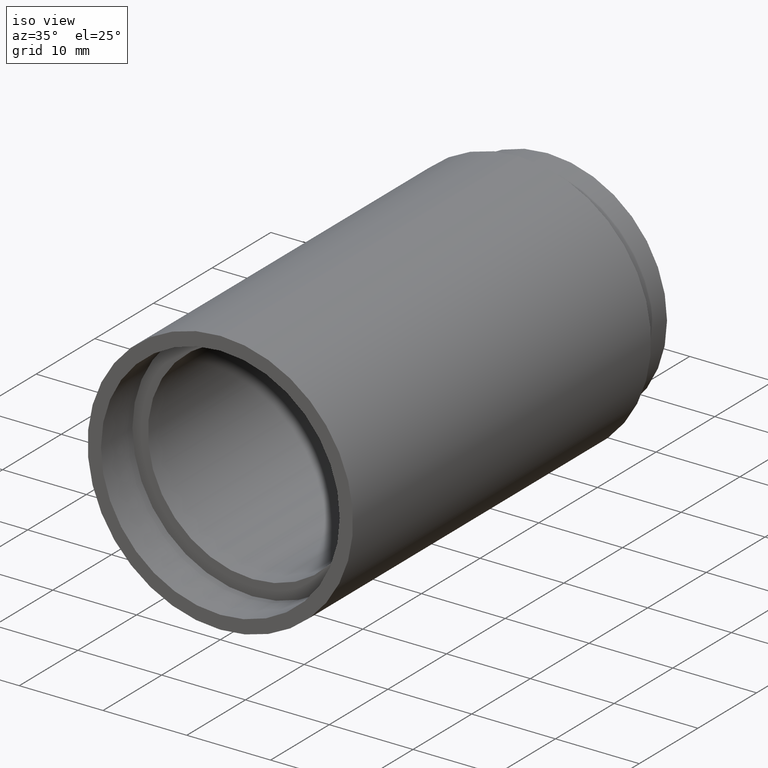
[diagram: clean part render]
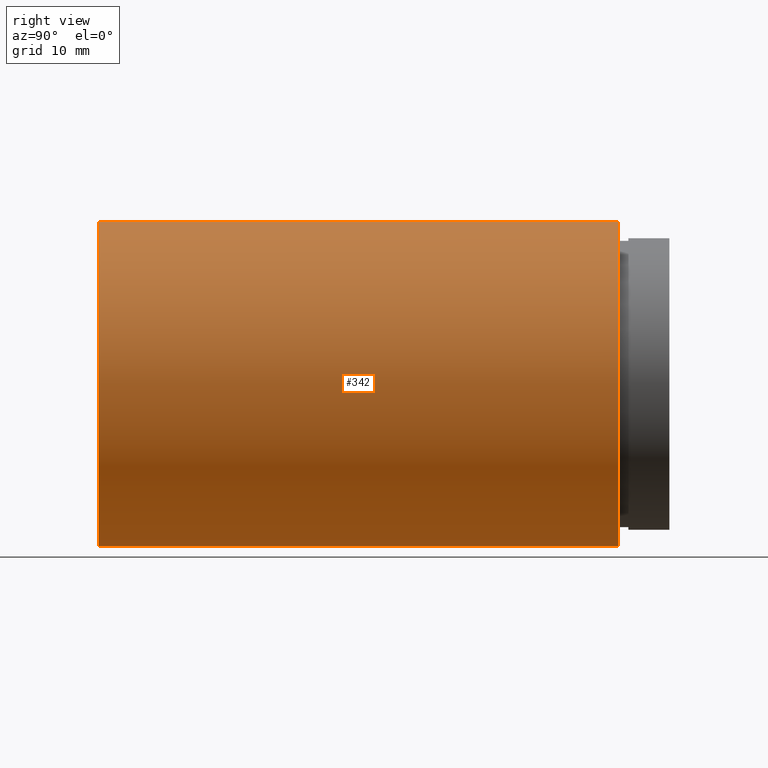
[diagram: tour spotlight — one face highlighted and labeled with its STEP entity id]
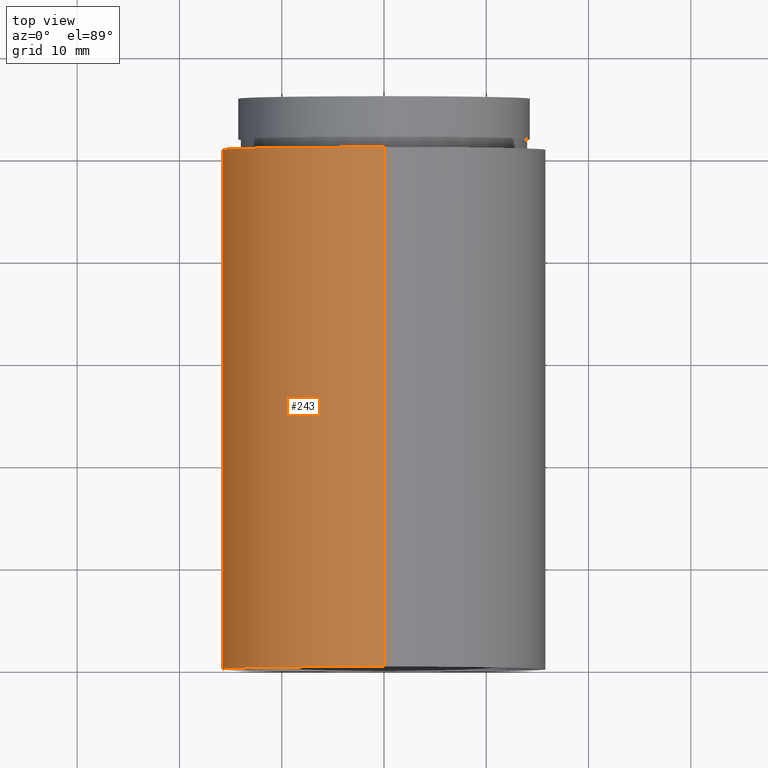
[diagram: tour spotlight — one face highlighted and labeled with its STEP entity id]
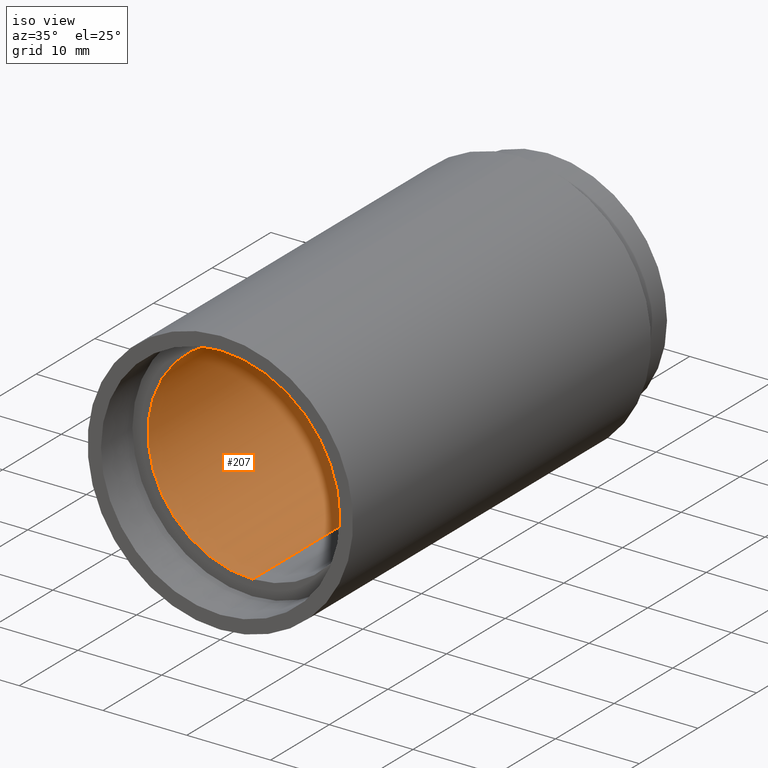
[diagram: tour spotlight — one face highlighted and labeled with its STEP entity id]
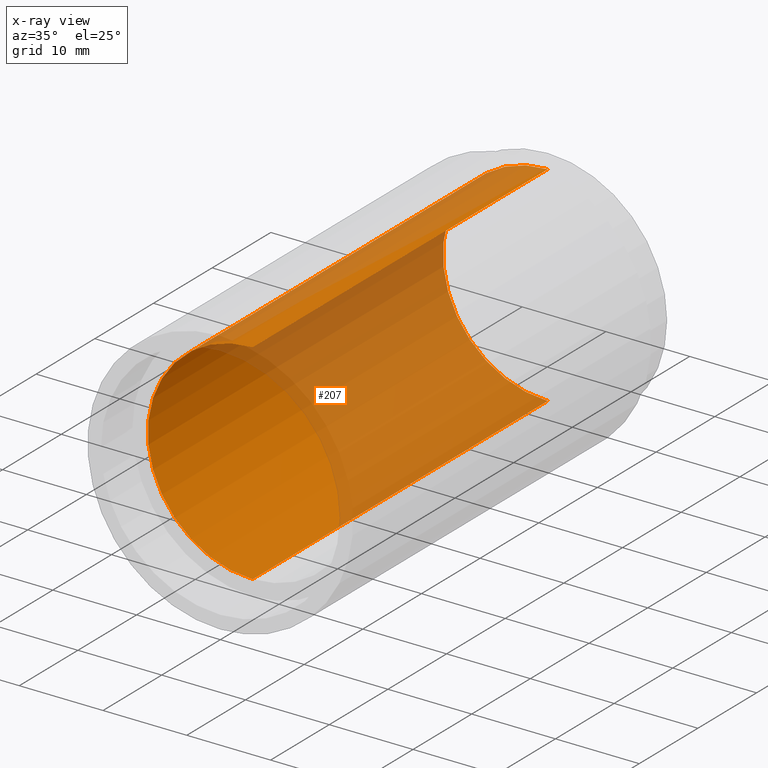
[diagram: x-ray of the same camera — body ghosted, this tour face saturated]
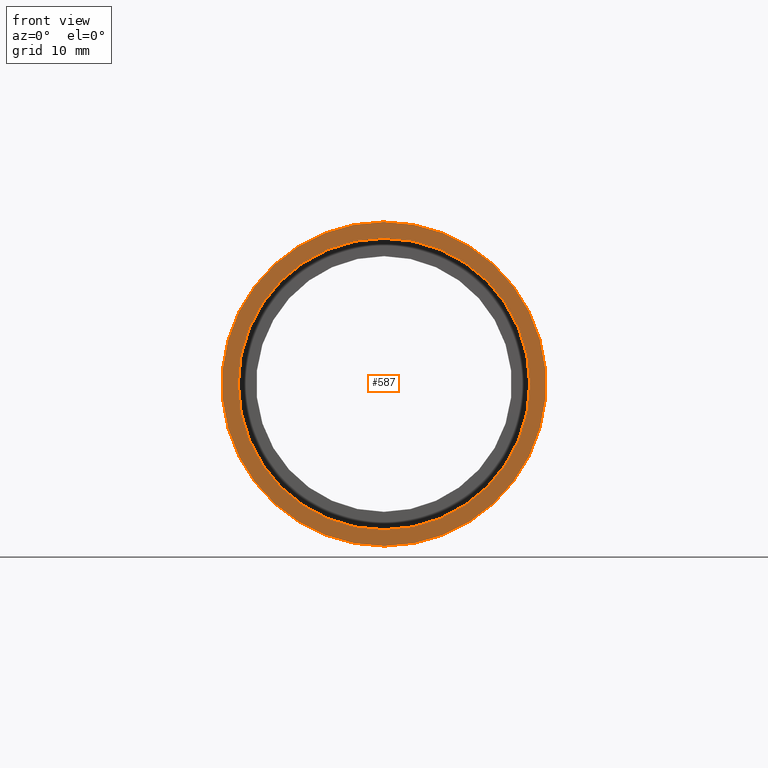
[diagram: tour spotlight — one face highlighted and labeled with its STEP entity id]
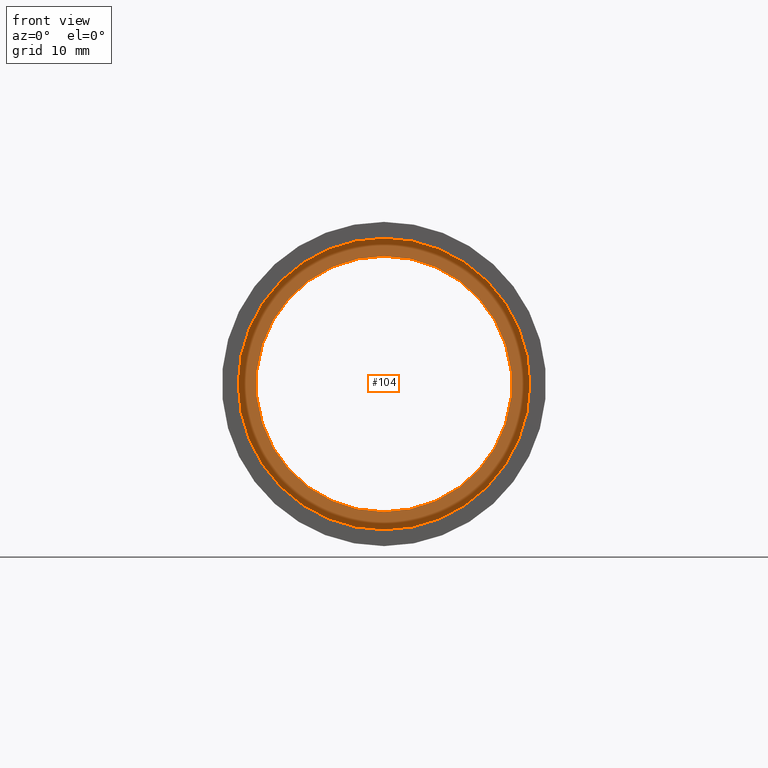
[diagram: tour spotlight — one face highlighted and labeled with its STEP entity id]
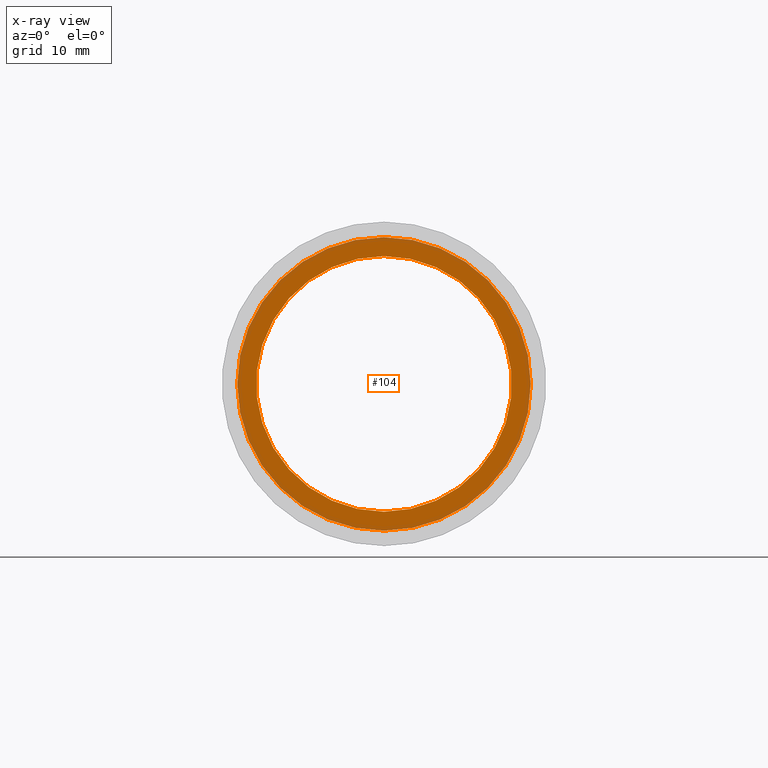
[diagram: x-ray of the same camera — body ghosted, this tour face saturated]
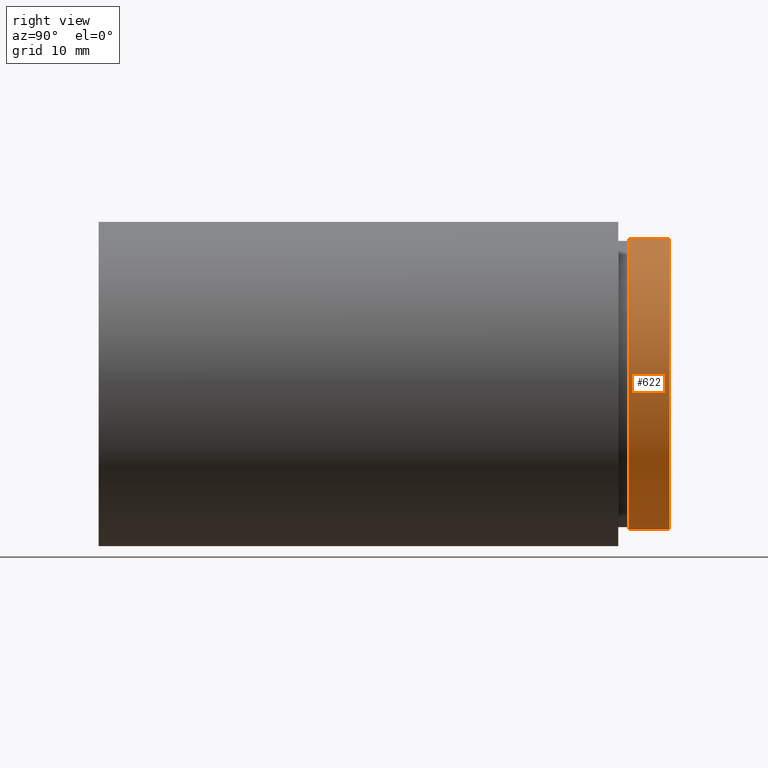
[diagram: tour spotlight — one face highlighted and labeled with its STEP entity id]
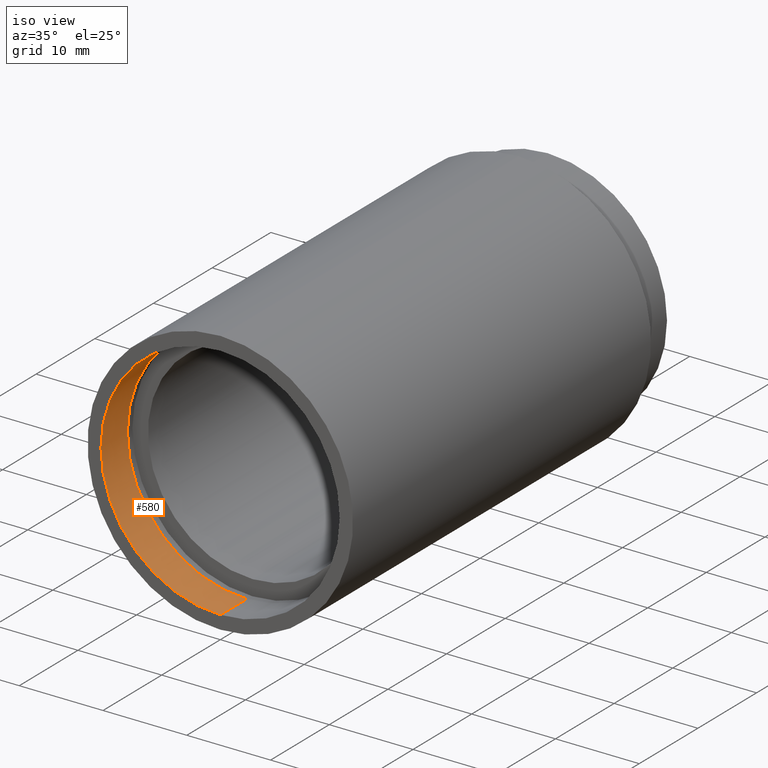
[diagram: tour spotlight — one face highlighted and labeled with its STEP entity id]
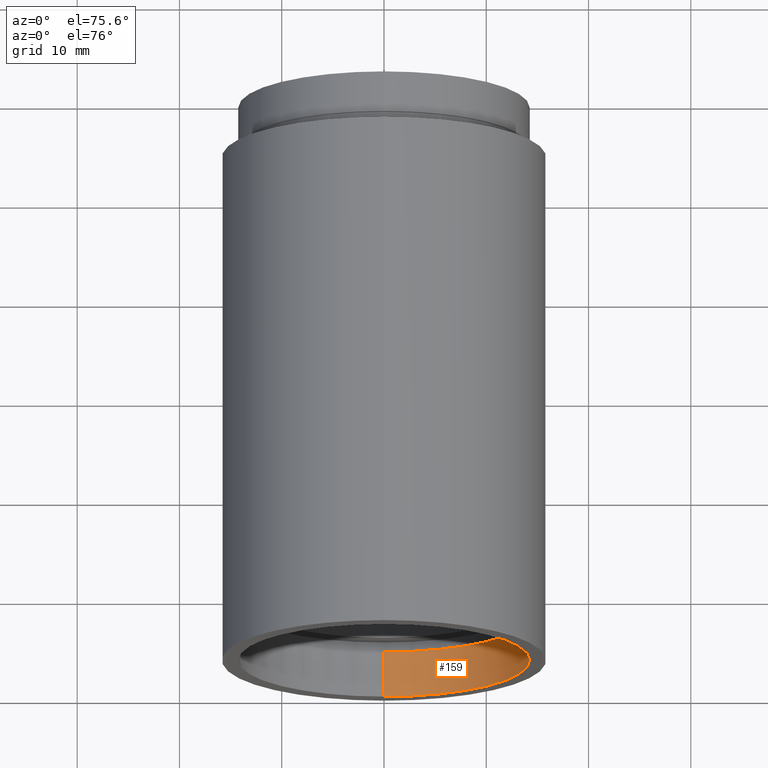
[diagram: tour spotlight — one face highlighted and labeled with its STEP entity id]
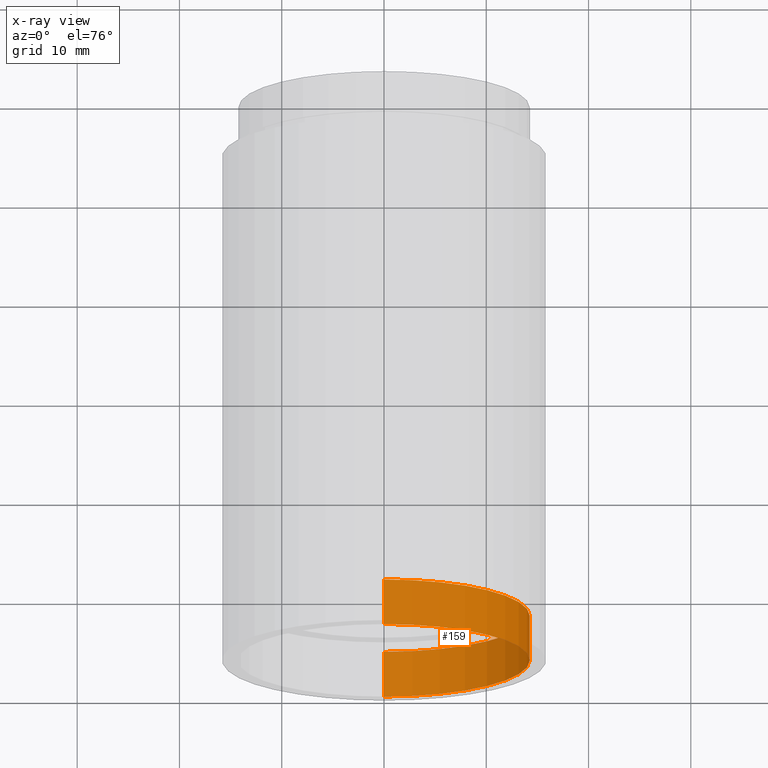
[diagram: x-ray of the same camera — body ghosted, this tour face saturated]
A machine part: a face-by-face anatomy tour. The part has 18 B-rep faces; the first image is the clean iso view, then the 8 largest visible faces are spotlighted one at a time (largest first), each with its STEP entity span.

Face 1 — right view, entity #342. In plain terms, the highlighted cylindrical surface (partial cylindrical patch) has radius 15.85 mm, axis along (-0, 1, -0).
Definition (entity closure, byte-faithful):
#34 = LINE ( 'NONE', #382, #114 ) ;
#35 = DIRECTION ( 'NONE',  ( -0.0000000000000000000, 1.000000000000000000, -0.0000000000000000000 ) ) ;
#36 = VERTEX_POINT ( 'NONE', #123 ) ;
#46 = VERTEX_POINT ( 'NONE', #69 ) ;
#54 = VERTEX_POINT ( 'NONE', #477 ) ;
#55 = DIRECTION ( 'NONE',  ( 0.0000000000000000000, 0.0000000000000000000, 1.000000000000000000 ) ) ;
#69 = CARTESIAN_POINT ( 'NONE',  ( 0.0000000000000000000, 50.79999999999998300, 15.85000000000002100 ) ) ;
#70 = CYLINDRICAL_SURFACE ( 'NONE', #190, 15.85000000000002100 ) ;
#105 = CARTESIAN_POINT ( 'NONE',  ( 1.941065176648557100E-015, 50.79999999999998300, -15.85000000000002100 ) ) ;
#112 = AXIS2_PLACEMENT_3D ( 'NONE', #450, #445, #55 ) ;
#113 = EDGE_CURVE ( 'NONE', #36, #559, #34, .T. ) ;
#114 = VECTOR ( 'NONE', #35, 1000.000000000000000 ) ;
#118 = ORIENTED_EDGE ( 'NONE', *, *, #599, .T. ) ;
#123 = CARTESIAN_POINT ( 'NONE',  ( 1.941065176648557100E-015, -2.775557561562891400E-014, -15.85000000000002100 ) ) ;
#133 = CARTESIAN_POINT ( 'NONE',  ( 0.0000000000000000000, 161.3761669434274500, 0.0000000000000000000 ) ) ;
#190 = AXIS2_PLACEMENT_3D ( 'NONE', #133, #571, #566 ) ;
#208 = DIRECTION ( 'NONE',  ( -0.0000000000000000000, 1.000000000000000000, -0.0000000000000000000 ) ) ;
#210 = DIRECTION ( 'NONE',  ( 0.0000000000000000000, 0.0000000000000000000, 1.000000000000000000 ) ) ;
#211 = FACE_OUTER_BOUND ( 'NONE', #239, .T. ) ;
#239 = EDGE_LOOP ( 'NONE', ( #118, #400, #279, #327 ) ) ;
#258 = AXIS2_PLACEMENT_3D ( 'NONE', #359, #208, #210 ) ;
#268 = VECTOR ( 'NONE', #351, 1000.000000000000000 ) ;
#279 = ORIENTED_EDGE ( 'NONE', *, *, #552, .F. ) ;
#294 = CARTESIAN_POINT ( 'NONE',  ( 0.0000000000000000000, 161.3761669434274500, 15.85000000000002100 ) ) ;
#316 = CIRCLE ( 'NONE', #258, 15.85000000000002100 ) ;
#322 = CIRCLE ( 'NONE', #112, 15.85000000000002100 ) ;
#327 = ORIENTED_EDGE ( 'NONE', *, *, #582, .F. ) ;
#342 = ADVANCED_FACE ( 'NONE', ( #211 ), #70, .T. ) ;
#351 = DIRECTION ( 'NONE',  ( -0.0000000000000000000, 1.000000000000000000, -0.0000000000000000000 ) ) ;
#359 = CARTESIAN_POINT ( 'NONE',  ( 0.0000000000000000000, 50.79999999999998300, 0.0000000000000000000 ) ) ;
#382 = CARTESIAN_POINT ( 'NONE',  ( 1.941065176648557100E-015, 161.3761669434274500, -15.85000000000002100 ) ) ;
#400 = ORIENTED_EDGE ( 'NONE', *, *, #113, .T. ) ;
#445 = DIRECTION ( 'NONE',  ( -0.0000000000000000000, 1.000000000000000000, -0.0000000000000000000 ) ) ;
#450 = CARTESIAN_POINT ( 'NONE',  ( 0.0000000000000000000, -2.775557561562891400E-014, 0.0000000000000000000 ) ) ;
#468 = LINE ( 'NONE', #294, #268 ) ;
#477 = CARTESIAN_POINT ( 'NONE',  ( 0.0000000000000000000, -2.775557561562891400E-014, 15.85000000000002100 ) ) ;
#552 = EDGE_CURVE ( 'NONE', #46, #559, #316, .T. ) ;
#559 = VERTEX_POINT ( 'NONE', #105 ) ;
#566 = DIRECTION ( 'NONE',  ( 0.0000000000000000000, 0.0000000000000000000, 1.000000000000000000 ) ) ;
#571 = DIRECTION ( 'NONE',  ( -0.0000000000000000000, 1.000000000000000000, -0.0000000000000000000 ) ) ;
#582 = EDGE_CURVE ( 'NONE', #54, #46, #468, .T. ) ;
#599 = EDGE_CURVE ( 'NONE', #54, #36, #322, .T. ) ;

Face 2 — top view, entity #243. In plain terms, the highlighted cylindrical surface (partial cylindrical patch) has radius 15.85 mm, axis along (-0, 1, -0).
Definition (entity closure, byte-faithful):
#14 = ORIENTED_EDGE ( 'NONE', *, *, #52, .T. ) ;
#33 = CYLINDRICAL_SURFACE ( 'NONE', #472, 15.85000000000002100 ) ;
#34 = LINE ( 'NONE', #382, #114 ) ;
#35 = DIRECTION ( 'NONE',  ( -0.0000000000000000000, 1.000000000000000000, -0.0000000000000000000 ) ) ;
#36 = VERTEX_POINT ( 'NONE', #123 ) ;
#40 = DIRECTION ( 'NONE',  ( 0.0000000000000000000, 0.0000000000000000000, 1.000000000000000000 ) ) ;
#46 = VERTEX_POINT ( 'NONE', #69 ) ;
#48 = EDGE_CURVE ( 'NONE', #559, #46, #555, .T. ) ;
#51 = DIRECTION ( 'NONE',  ( 0.0000000000000000000, 0.0000000000000000000, 1.000000000000000000 ) ) ;
#52 = EDGE_CURVE ( 'NONE', #36, #54, #106, .T. ) ;
#54 = VERTEX_POINT ( 'NONE', #477 ) ;
#69 = CARTESIAN_POINT ( 'NONE',  ( 0.0000000000000000000, 50.79999999999998300, 15.85000000000002100 ) ) ;
#80 = EDGE_LOOP ( 'NONE', ( #227, #14, #362, #338 ) ) ;
#82 = DIRECTION ( 'NONE',  ( -0.0000000000000000000, 1.000000000000000000, -0.0000000000000000000 ) ) ;
#88 = DIRECTION ( 'NONE',  ( -0.0000000000000000000, 1.000000000000000000, -0.0000000000000000000 ) ) ;
#96 = CARTESIAN_POINT ( 'NONE',  ( 0.0000000000000000000, 161.3761669434274500, 0.0000000000000000000 ) ) ;
#105 = CARTESIAN_POINT ( 'NONE',  ( 1.941065176648557100E-015, 50.79999999999998300, -15.85000000000002100 ) ) ;
#106 = CIRCLE ( 'NONE', #524, 15.85000000000002100 ) ;
#113 = EDGE_CURVE ( 'NONE', #36, #559, #34, .T. ) ;
#114 = VECTOR ( 'NONE', #35, 1000.000000000000000 ) ;
#123 = CARTESIAN_POINT ( 'NONE',  ( 1.941065176648557100E-015, -2.775557561562891400E-014, -15.85000000000002100 ) ) ;
#144 = CARTESIAN_POINT ( 'NONE',  ( 0.0000000000000000000, -2.775557561562891400E-014, 0.0000000000000000000 ) ) ;
#188 = CARTESIAN_POINT ( 'NONE',  ( 0.0000000000000000000, 50.79999999999998300, 0.0000000000000000000 ) ) ;
#227 = ORIENTED_EDGE ( 'NONE', *, *, #113, .F. ) ;
#243 = ADVANCED_FACE ( 'NONE', ( #597 ), #33, .T. ) ;
#268 = VECTOR ( 'NONE', #351, 1000.000000000000000 ) ;
#294 = CARTESIAN_POINT ( 'NONE',  ( 0.0000000000000000000, 161.3761669434274500, 15.85000000000002100 ) ) ;
#336 = DIRECTION ( 'NONE',  ( 0.0000000000000000000, 0.0000000000000000000, 1.000000000000000000 ) ) ;
#338 = ORIENTED_EDGE ( 'NONE', *, *, #48, .F. ) ;
#351 = DIRECTION ( 'NONE',  ( -0.0000000000000000000, 1.000000000000000000, -0.0000000000000000000 ) ) ;
#362 = ORIENTED_EDGE ( 'NONE', *, *, #582, .T. ) ;
#382 = CARTESIAN_POINT ( 'NONE',  ( 1.941065176648557100E-015, 161.3761669434274500, -15.85000000000002100 ) ) ;
#468 = LINE ( 'NONE', #294, #268 ) ;
#472 = AXIS2_PLACEMENT_3D ( 'NONE', #96, #623, #51 ) ;
#477 = CARTESIAN_POINT ( 'NONE',  ( 0.0000000000000000000, -2.775557561562891400E-014, 15.85000000000002100 ) ) ;
#510 = AXIS2_PLACEMENT_3D ( 'NONE', #188, #88, #336 ) ;
#524 = AXIS2_PLACEMENT_3D ( 'NONE', #144, #82, #40 ) ;
#555 = CIRCLE ( 'NONE', #510, 15.85000000000002100 ) ;
#559 = VERTEX_POINT ( 'NONE', #105 ) ;
#582 = EDGE_CURVE ( 'NONE', #54, #46, #468, .T. ) ;
#597 = FACE_OUTER_BOUND ( 'NONE', #80, .T. ) ;
#623 = DIRECTION ( 'NONE',  ( -0.0000000000000000000, 1.000000000000000000, -0.0000000000000000000 ) ) ;

Face 3 — iso view, entity #207. An x-ray twin of the same camera follows (body ghosted, this face saturated) — the face is partly hidden behind the body. In plain terms, the highlighted cylindrical surface (partial cylindrical patch) has radius 12.5 mm, axis along (-0, 1, -0).
Definition (entity closure, byte-faithful):
#10 = AXIS2_PLACEMENT_3D ( 'NONE', #124, #470, #563 ) ;
#43 = DIRECTION ( 'NONE',  ( -0.0000000000000000000, 1.000000000000000000, -0.0000000000000000000 ) ) ;
#50 = CARTESIAN_POINT ( 'NONE',  ( 0.0000000000000000000, 5.499999999999976900, 0.0000000000000000000 ) ) ;
#61 = EDGE_CURVE ( 'NONE', #174, #541, #185, .T. ) ;
#81 = VERTEX_POINT ( 'NONE', #193 ) ;
#92 = ORIENTED_EDGE ( 'NONE', *, *, #130, .F. ) ;
#124 = CARTESIAN_POINT ( 'NONE',  ( 0.0000000000000000000, 55.79999999999999000, 0.0000000000000000000 ) ) ;
#125 = VECTOR ( 'NONE', #326, 1000.000000000000000 ) ;
#130 = EDGE_CURVE ( 'NONE', #81, #503, #606, .T. ) ;
#150 = DIRECTION ( 'NONE',  ( -0.0000000000000000000, 1.000000000000000000, -0.0000000000000000000 ) ) ;
#163 = CIRCLE ( 'NONE', #10, 12.50000000000002000 ) ;
#174 = VERTEX_POINT ( 'NONE', #191 ) ;
#183 = EDGE_CURVE ( 'NONE', #174, #81, #481, .T. ) ;
#185 = LINE ( 'NONE', #430, #125 ) ;
#191 = CARTESIAN_POINT ( 'NONE',  ( 1.530808498934193900E-015, 5.499999999999976900, -12.50000000000002000 ) ) ;
#193 = CARTESIAN_POINT ( 'NONE',  ( 0.0000000000000000000, 5.499999999999976900, 12.50000000000002000 ) ) ;
#207 = ADVANCED_FACE ( 'NONE', ( #422 ), #324, .F. ) ;
#233 = CARTESIAN_POINT ( 'NONE',  ( 0.0000000000000000000, 161.3761669434274500, 12.50000000000002000 ) ) ;
#247 = DIRECTION ( 'NONE',  ( 0.0000000000000000000, 0.0000000000000000000, 1.000000000000000000 ) ) ;
#259 = CARTESIAN_POINT ( 'NONE',  ( 0.0000000000000000000, 55.79999999999999000, 12.50000000000002000 ) ) ;
#261 = VECTOR ( 'NONE', #43, 1000.000000000000000 ) ;
#275 = EDGE_CURVE ( 'NONE', #541, #503, #163, .T. ) ;
#297 = AXIS2_PLACEMENT_3D ( 'NONE', #339, #540, #247 ) ;
#307 = EDGE_LOOP ( 'NONE', ( #449, #451, #598, #92 ) ) ;
#324 = CYLINDRICAL_SURFACE ( 'NONE', #297, 12.50000000000002000 ) ;
#326 = DIRECTION ( 'NONE',  ( -0.0000000000000000000, 1.000000000000000000, -0.0000000000000000000 ) ) ;
#339 = CARTESIAN_POINT ( 'NONE',  ( 0.0000000000000000000, 161.3761669434274500, 0.0000000000000000000 ) ) ;
#422 = FACE_OUTER_BOUND ( 'NONE', #307, .T. ) ;
#430 = CARTESIAN_POINT ( 'NONE',  ( 1.530808498934193900E-015, 161.3761669434274500, -12.50000000000002000 ) ) ;
#448 = AXIS2_PLACEMENT_3D ( 'NONE', #50, #150, #536 ) ;
#449 = ORIENTED_EDGE ( 'NONE', *, *, #183, .F. ) ;
#451 = ORIENTED_EDGE ( 'NONE', *, *, #61, .T. ) ;
#470 = DIRECTION ( 'NONE',  ( -0.0000000000000000000, 1.000000000000000000, -0.0000000000000000000 ) ) ;
#481 = CIRCLE ( 'NONE', #448, 12.50000000000002000 ) ;
#503 = VERTEX_POINT ( 'NONE', #259 ) ;
#536 = DIRECTION ( 'NONE',  ( 0.0000000000000000000, 0.0000000000000000000, 1.000000000000000000 ) ) ;
#540 = DIRECTION ( 'NONE',  ( -0.0000000000000000000, 1.000000000000000000, -0.0000000000000000000 ) ) ;
#541 = VERTEX_POINT ( 'NONE', #542 ) ;
#542 = CARTESIAN_POINT ( 'NONE',  ( 1.530808498934193900E-015, 55.79999999999999000, -12.50000000000002000 ) ) ;
#563 = DIRECTION ( 'NONE',  ( 0.0000000000000000000, 0.0000000000000000000, 1.000000000000000000 ) ) ;
#598 = ORIENTED_EDGE ( 'NONE', *, *, #275, .T. ) ;
#606 = LINE ( 'NONE', #233, #261 ) ;

Face 4 — front view, entity #587. In plain terms, the highlighted planar face has unit normal (-0, 1, 0).
Definition (entity closure, byte-faithful):
#36 = VERTEX_POINT ( 'NONE', #123 ) ;
#40 = DIRECTION ( 'NONE',  ( 0.0000000000000000000, 0.0000000000000000000, 1.000000000000000000 ) ) ;
#52 = EDGE_CURVE ( 'NONE', #36, #54, #106, .T. ) ;
#54 = VERTEX_POINT ( 'NONE', #477 ) ;
#55 = DIRECTION ( 'NONE',  ( 0.0000000000000000000, 0.0000000000000000000, 1.000000000000000000 ) ) ;
#82 = DIRECTION ( 'NONE',  ( -0.0000000000000000000, 1.000000000000000000, -0.0000000000000000000 ) ) ;
#83 = DIRECTION ( 'NONE',  ( -0.0000000000000000000, 1.000000000000000000, -0.0000000000000000000 ) ) ;
#100 = ORIENTED_EDGE ( 'NONE', *, *, #604, .T. ) ;
#106 = CIRCLE ( 'NONE', #524, 15.85000000000002100 ) ;
#108 = DIRECTION ( 'NONE',  ( 0.0000000000000000000, 0.0000000000000000000, 1.000000000000000000 ) ) ;
#112 = AXIS2_PLACEMENT_3D ( 'NONE', #450, #445, #55 ) ;
#123 = CARTESIAN_POINT ( 'NONE',  ( 1.941065176648557100E-015, -2.775557561562891400E-014, -15.85000000000002100 ) ) ;
#126 = ORIENTED_EDGE ( 'NONE', *, *, #360, .T. ) ;
#144 = CARTESIAN_POINT ( 'NONE',  ( 0.0000000000000000000, -2.775557561562891400E-014, 0.0000000000000000000 ) ) ;
#156 = CARTESIAN_POINT ( 'NONE',  ( 0.0000000000000000000, 2.775557561562891400E-014, 14.25000000000000000 ) ) ;
#171 = CIRCLE ( 'NONE', #229, 14.25000000000000000 ) ;
#213 = FACE_BOUND ( 'NONE', #512, .T. ) ;
#220 = CIRCLE ( 'NONE', #539, 14.25000000000000000 ) ;
#229 = AXIS2_PLACEMENT_3D ( 'NONE', #590, #354, #395 ) ;
#322 = CIRCLE ( 'NONE', #112, 15.85000000000002100 ) ;
#325 = ORIENTED_EDGE ( 'NONE', *, *, #52, .F. ) ;
#353 = CARTESIAN_POINT ( 'NONE',  ( 14.25000000000000000, 8.726008142763375300E-015, 0.0000000000000000000 ) ) ;
#354 = DIRECTION ( 'NONE',  ( -0.0000000000000000000, 1.000000000000000000, -0.0000000000000000000 ) ) ;
#360 = EDGE_CURVE ( 'NONE', #551, #513, #220, .T. ) ;
#395 = DIRECTION ( 'NONE',  ( 0.0000000000000000000, 0.0000000000000000000, 1.000000000000000000 ) ) ;
#402 = CARTESIAN_POINT ( 'NONE',  ( 1.745121688784978200E-015, 2.775557561562891400E-014, -14.25000000000000000 ) ) ;
#445 = DIRECTION ( 'NONE',  ( -0.0000000000000000000, 1.000000000000000000, -0.0000000000000000000 ) ) ;
#450 = CARTESIAN_POINT ( 'NONE',  ( 0.0000000000000000000, -2.775557561562891400E-014, 0.0000000000000000000 ) ) ;
#455 = FACE_OUTER_BOUND ( 'NONE', #508, .T. ) ;
#476 = CARTESIAN_POINT ( 'NONE',  ( 0.0000000000000000000, 2.775557561562891400E-014, 0.0000000000000000000 ) ) ;
#477 = CARTESIAN_POINT ( 'NONE',  ( 0.0000000000000000000, -2.775557561562891400E-014, 15.85000000000002100 ) ) ;
#483 = ORIENTED_EDGE ( 'NONE', *, *, #599, .F. ) ;
#506 = DIRECTION ( 'NONE',  ( -0.0000000000000000000, 1.000000000000000000, 0.0000000000000000000 ) ) ;
#508 = EDGE_LOOP ( 'NONE', ( #483, #325 ) ) ;
#512 = EDGE_LOOP ( 'NONE', ( #100, #126 ) ) ;
#513 = VERTEX_POINT ( 'NONE', #156 ) ;
#524 = AXIS2_PLACEMENT_3D ( 'NONE', #144, #82, #40 ) ;
#539 = AXIS2_PLACEMENT_3D ( 'NONE', #476, #83, #569 ) ;
#546 = PLANE ( 'NONE',  #591 ) ;
#551 = VERTEX_POINT ( 'NONE', #402 ) ;
#569 = DIRECTION ( 'NONE',  ( 0.0000000000000000000, 0.0000000000000000000, 1.000000000000000000 ) ) ;
#587 = ADVANCED_FACE ( 'NONE', ( #455, #213 ), #546, .F. ) ;
#590 = CARTESIAN_POINT ( 'NONE',  ( 0.0000000000000000000, 2.775557561562891400E-014, 0.0000000000000000000 ) ) ;
#591 = AXIS2_PLACEMENT_3D ( 'NONE', #353, #506, #108 ) ;
#599 = EDGE_CURVE ( 'NONE', #54, #36, #322, .T. ) ;
#604 = EDGE_CURVE ( 'NONE', #513, #551, #171, .T. ) ;

Face 5 — front view, entity #104. An x-ray twin of the same camera follows (body ghosted, this face saturated) — the face is partly hidden behind the body. In plain terms, the highlighted planar face has unit normal (-0, 1, 0).
Definition (entity closure, byte-faithful):
#23 = FACE_OUTER_BOUND ( 'NONE', #418, .T. ) ;
#24 = DIRECTION ( 'NONE',  ( -0.0000000000000000000, 1.000000000000000000, -0.0000000000000000000 ) ) ;
#45 = DIRECTION ( 'NONE',  ( -0.0000000000000000000, 1.000000000000000000, -0.0000000000000000000 ) ) ;
#50 = CARTESIAN_POINT ( 'NONE',  ( 0.0000000000000000000, 5.499999999999976900, 0.0000000000000000000 ) ) ;
#71 = ORIENTED_EDGE ( 'NONE', *, *, #236, .F. ) ;
#81 = VERTEX_POINT ( 'NONE', #193 ) ;
#87 = AXIS2_PLACEMENT_3D ( 'NONE', #341, #490, #198 ) ;
#89 = DIRECTION ( 'NONE',  ( 0.0000000000000000000, 0.0000000000000000000, 1.000000000000000000 ) ) ;
#104 = ADVANCED_FACE ( 'NONE', ( #23, #135 ), #376, .F. ) ;
#135 = FACE_BOUND ( 'NONE', #157, .T. ) ;
#142 = CARTESIAN_POINT ( 'NONE',  ( 1.757368156776454300E-015, 5.499999999999976900, -14.35000000000001900 ) ) ;
#150 = DIRECTION ( 'NONE',  ( -0.0000000000000000000, 1.000000000000000000, -0.0000000000000000000 ) ) ;
#157 = EDGE_LOOP ( 'NONE', ( #238, #288 ) ) ;
#172 = EDGE_CURVE ( 'NONE', #425, #526, #269, .T. ) ;
#174 = VERTEX_POINT ( 'NONE', #191 ) ;
#183 = EDGE_CURVE ( 'NONE', #174, #81, #481, .T. ) ;
#191 = CARTESIAN_POINT ( 'NONE',  ( 1.530808498934193900E-015, 5.499999999999976900, -12.50000000000002000 ) ) ;
#193 = CARTESIAN_POINT ( 'NONE',  ( 0.0000000000000000000, 5.499999999999976900, 12.50000000000002000 ) ) ;
#198 = DIRECTION ( 'NONE',  ( 0.0000000000000000000, 0.0000000000000000000, 1.000000000000000000 ) ) ;
#209 = CARTESIAN_POINT ( 'NONE',  ( 0.0000000000000000000, 5.499999999999976900, 14.35000000000001900 ) ) ;
#232 = CARTESIAN_POINT ( 'NONE',  ( 12.50000000000002000, 5.499999999999984000, 0.0000000000000000000 ) ) ;
#236 = EDGE_CURVE ( 'NONE', #526, #425, #318, .T. ) ;
#238 = ORIENTED_EDGE ( 'NONE', *, *, #377, .T. ) ;
#254 = AXIS2_PLACEMENT_3D ( 'NONE', #232, #617, #421 ) ;
#265 = AXIS2_PLACEMENT_3D ( 'NONE', #321, #24, #89 ) ;
#269 = CIRCLE ( 'NONE', #547, 14.35000000000001900 ) ;
#288 = ORIENTED_EDGE ( 'NONE', *, *, #183, .T. ) ;
#318 = CIRCLE ( 'NONE', #87, 14.35000000000001900 ) ;
#321 = CARTESIAN_POINT ( 'NONE',  ( 0.0000000000000000000, 5.499999999999976900, 0.0000000000000000000 ) ) ;
#341 = CARTESIAN_POINT ( 'NONE',  ( 0.0000000000000000000, 5.499999999999976900, 0.0000000000000000000 ) ) ;
#376 = PLANE ( 'NONE',  #254 ) ;
#377 = EDGE_CURVE ( 'NONE', #81, #174, #404, .T. ) ;
#404 = CIRCLE ( 'NONE', #265, 12.50000000000002000 ) ;
#418 = EDGE_LOOP ( 'NONE', ( #71, #444 ) ) ;
#421 = DIRECTION ( 'NONE',  ( 0.0000000000000000000, 0.0000000000000000000, 1.000000000000000000 ) ) ;
#425 = VERTEX_POINT ( 'NONE', #142 ) ;
#444 = ORIENTED_EDGE ( 'NONE', *, *, #172, .F. ) ;
#448 = AXIS2_PLACEMENT_3D ( 'NONE', #50, #150, #536 ) ;
#481 = CIRCLE ( 'NONE', #448, 12.50000000000002000 ) ;
#490 = DIRECTION ( 'NONE',  ( -0.0000000000000000000, 1.000000000000000000, -0.0000000000000000000 ) ) ;
#526 = VERTEX_POINT ( 'NONE', #209 ) ;
#531 = DIRECTION ( 'NONE',  ( 0.0000000000000000000, 0.0000000000000000000, 1.000000000000000000 ) ) ;
#536 = DIRECTION ( 'NONE',  ( 0.0000000000000000000, 0.0000000000000000000, 1.000000000000000000 ) ) ;
#547 = AXIS2_PLACEMENT_3D ( 'NONE', #611, #45, #531 ) ;
#611 = CARTESIAN_POINT ( 'NONE',  ( 0.0000000000000000000, 5.499999999999976900, 0.0000000000000000000 ) ) ;
#617 = DIRECTION ( 'NONE',  ( -0.0000000000000000000, 1.000000000000000000, 0.0000000000000000000 ) ) ;

Face 6 — right view, entity #622. In plain terms, the highlighted cylindrical surface (partial cylindrical patch) has radius 14.25 mm, axis along (-0, 1, -0).
Definition (entity closure, byte-faithful):
#47 = AXIS2_PLACEMENT_3D ( 'NONE', #548, #253, #588 ) ;
#49 = CYLINDRICAL_SURFACE ( 'NONE', #47, 14.25000000000001400 ) ;
#122 = EDGE_CURVE ( 'NONE', #435, #601, #511, .T. ) ;
#138 = ORIENTED_EDGE ( 'NONE', *, *, #272, .F. ) ;
#145 = CARTESIAN_POINT ( 'NONE',  ( 0.0000000000000000000, 51.79999999999998300, 14.25000000000001400 ) ) ;
#169 = VECTOR ( 'NONE', #576, 1000.000000000000000 ) ;
#182 = DIRECTION ( 'NONE',  ( -0.0000000000000000000, 1.000000000000000000, -0.0000000000000000000 ) ) ;
#200 = CARTESIAN_POINT ( 'NONE',  ( 1.745121688784980200E-015, 161.3761669434274500, -14.25000000000001400 ) ) ;
#202 = LINE ( 'NONE', #200, #169 ) ;
#219 = EDGE_CURVE ( 'NONE', #601, #370, #202, .T. ) ;
#224 = CARTESIAN_POINT ( 'NONE',  ( 0.0000000000000000000, 55.79999999999999000, 0.0000000000000000000 ) ) ;
#231 = AXIS2_PLACEMENT_3D ( 'NONE', #432, #568, #427 ) ;
#253 = DIRECTION ( 'NONE',  ( -0.0000000000000000000, 1.000000000000000000, -0.0000000000000000000 ) ) ;
#267 = VERTEX_POINT ( 'NONE', #328 ) ;
#272 = EDGE_CURVE ( 'NONE', #267, #370, #286, .T. ) ;
#284 = LINE ( 'NONE', #443, #304 ) ;
#286 = CIRCLE ( 'NONE', #602, 14.25000000000001400 ) ;
#296 = CARTESIAN_POINT ( 'NONE',  ( 1.745121688784980200E-015, 51.79999999999998300, -14.25000000000001400 ) ) ;
#304 = VECTOR ( 'NONE', #501, 1000.000000000000000 ) ;
#328 = CARTESIAN_POINT ( 'NONE',  ( 0.0000000000000000000, 55.79999999999999000, 14.25000000000001400 ) ) ;
#364 = ORIENTED_EDGE ( 'NONE', *, *, #122, .T. ) ;
#368 = EDGE_LOOP ( 'NONE', ( #364, #560, #138, #567 ) ) ;
#370 = VERTEX_POINT ( 'NONE', #372 ) ;
#372 = CARTESIAN_POINT ( 'NONE',  ( 1.745121688784980200E-015, 55.79999999999999000, -14.25000000000001400 ) ) ;
#427 = DIRECTION ( 'NONE',  ( 0.0000000000000000000, 0.0000000000000000000, 1.000000000000000000 ) ) ;
#432 = CARTESIAN_POINT ( 'NONE',  ( 0.0000000000000000000, 51.79999999999998300, 0.0000000000000000000 ) ) ;
#435 = VERTEX_POINT ( 'NONE', #145 ) ;
#443 = CARTESIAN_POINT ( 'NONE',  ( 0.0000000000000000000, 161.3761669434274500, 14.25000000000001400 ) ) ;
#501 = DIRECTION ( 'NONE',  ( -0.0000000000000000000, 1.000000000000000000, -0.0000000000000000000 ) ) ;
#505 = FACE_OUTER_BOUND ( 'NONE', #368, .T. ) ;
#511 = CIRCLE ( 'NONE', #231, 14.25000000000001400 ) ;
#548 = CARTESIAN_POINT ( 'NONE',  ( 0.0000000000000000000, 161.3761669434274500, 0.0000000000000000000 ) ) ;
#560 = ORIENTED_EDGE ( 'NONE', *, *, #219, .T. ) ;
#564 = EDGE_CURVE ( 'NONE', #435, #267, #284, .T. ) ;
#567 = ORIENTED_EDGE ( 'NONE', *, *, #564, .F. ) ;
#568 = DIRECTION ( 'NONE',  ( -0.0000000000000000000, 1.000000000000000000, -0.0000000000000000000 ) ) ;
#576 = DIRECTION ( 'NONE',  ( -0.0000000000000000000, 1.000000000000000000, -0.0000000000000000000 ) ) ;
#588 = DIRECTION ( 'NONE',  ( 0.0000000000000000000, 0.0000000000000000000, 1.000000000000000000 ) ) ;
#601 = VERTEX_POINT ( 'NONE', #296 ) ;
#602 = AXIS2_PLACEMENT_3D ( 'NONE', #224, #182, #610 ) ;
#610 = DIRECTION ( 'NONE',  ( 0.0000000000000000000, 0.0000000000000000000, 1.000000000000000000 ) ) ;
#622 = ADVANCED_FACE ( 'NONE', ( #505 ), #49, .T. ) ;

Face 7 — iso view, entity #580. In plain terms, the highlighted cylindrical surface (partial cylindrical patch) has radius 14.25 mm, axis along (-0, 1, -0).
Definition (entity closure, byte-faithful):
#12 = EDGE_CURVE ( 'NONE', #551, #74, #53, .T. ) ;
#20 = CARTESIAN_POINT ( 'NONE',  ( 1.745121688784978200E-015, 161.3761669434274500, -14.25000000000000000 ) ) ;
#30 = EDGE_CURVE ( 'NONE', #74, #222, #565, .T. ) ;
#53 = LINE ( 'NONE', #20, #615 ) ;
#57 = AXIS2_PLACEMENT_3D ( 'NONE', #119, #178, #464 ) ;
#74 = VERTEX_POINT ( 'NONE', #378 ) ;
#83 = DIRECTION ( 'NONE',  ( -0.0000000000000000000, 1.000000000000000000, -0.0000000000000000000 ) ) ;
#91 = ORIENTED_EDGE ( 'NONE', *, *, #499, .F. ) ;
#119 = CARTESIAN_POINT ( 'NONE',  ( 0.0000000000000000000, 4.500000000000032000, 0.0000000000000000000 ) ) ;
#153 = LINE ( 'NONE', #384, #429 ) ;
#156 = CARTESIAN_POINT ( 'NONE',  ( 0.0000000000000000000, 2.775557561562891400E-014, 14.25000000000000000 ) ) ;
#162 = DIRECTION ( 'NONE',  ( 0.0000000000000000000, 0.0000000000000000000, 1.000000000000000000 ) ) ;
#178 = DIRECTION ( 'NONE',  ( -0.0000000000000000000, 1.000000000000000000, -0.0000000000000000000 ) ) ;
#204 = ORIENTED_EDGE ( 'NONE', *, *, #12, .T. ) ;
#220 = CIRCLE ( 'NONE', #539, 14.25000000000000000 ) ;
#222 = VERTEX_POINT ( 'NONE', #348 ) ;
#348 = CARTESIAN_POINT ( 'NONE',  ( 0.0000000000000000000, 4.500000000000032000, 14.25000000000000000 ) ) ;
#360 = EDGE_CURVE ( 'NONE', #551, #513, #220, .T. ) ;
#373 = DIRECTION ( 'NONE',  ( -0.0000000000000000000, 1.000000000000000000, -0.0000000000000000000 ) ) ;
#374 = ORIENTED_EDGE ( 'NONE', *, *, #30, .T. ) ;
#378 = CARTESIAN_POINT ( 'NONE',  ( 1.745121688784978200E-015, 4.500000000000032000, -14.25000000000000000 ) ) ;
#380 = EDGE_LOOP ( 'NONE', ( #398, #204, #374, #91 ) ) ;
#383 = FACE_OUTER_BOUND ( 'NONE', #380, .T. ) ;
#384 = CARTESIAN_POINT ( 'NONE',  ( 0.0000000000000000000, 161.3761669434274500, 14.25000000000000000 ) ) ;
#394 = CARTESIAN_POINT ( 'NONE',  ( 0.0000000000000000000, 161.3761669434274500, 0.0000000000000000000 ) ) ;
#398 = ORIENTED_EDGE ( 'NONE', *, *, #360, .F. ) ;
#402 = CARTESIAN_POINT ( 'NONE',  ( 1.745121688784978200E-015, 2.775557561562891400E-014, -14.25000000000000000 ) ) ;
#429 = VECTOR ( 'NONE', #482, 1000.000000000000000 ) ;
#464 = DIRECTION ( 'NONE',  ( 0.0000000000000000000, 0.0000000000000000000, 1.000000000000000000 ) ) ;
#476 = CARTESIAN_POINT ( 'NONE',  ( 0.0000000000000000000, 2.775557561562891400E-014, 0.0000000000000000000 ) ) ;
#482 = DIRECTION ( 'NONE',  ( -0.0000000000000000000, 1.000000000000000000, -0.0000000000000000000 ) ) ;
#499 = EDGE_CURVE ( 'NONE', #513, #222, #153, .T. ) ;
#513 = VERTEX_POINT ( 'NONE', #156 ) ;
#539 = AXIS2_PLACEMENT_3D ( 'NONE', #476, #83, #569 ) ;
#544 = DIRECTION ( 'NONE',  ( -0.0000000000000000000, 1.000000000000000000, -0.0000000000000000000 ) ) ;
#545 = CYLINDRICAL_SURFACE ( 'NONE', #549, 14.25000000000000000 ) ;
#549 = AXIS2_PLACEMENT_3D ( 'NONE', #394, #544, #162 ) ;
#551 = VERTEX_POINT ( 'NONE', #402 ) ;
#565 = CIRCLE ( 'NONE', #57, 14.25000000000000000 ) ;
#569 = DIRECTION ( 'NONE',  ( 0.0000000000000000000, 0.0000000000000000000, 1.000000000000000000 ) ) ;
#580 = ADVANCED_FACE ( 'NONE', ( #383 ), #545, .F. ) ;
#615 = VECTOR ( 'NONE', #373, 1000.000000000000000 ) ;

Face 8 — auxiliary view, entity #159. An x-ray twin of the same camera follows (body ghosted, this face saturated) — the face is partly hidden behind the body. In plain terms, the highlighted cylindrical surface (partial cylindrical patch) has radius 14.25 mm, axis along (-0, 1, -0).
Definition (entity closure, byte-faithful):
#12 = EDGE_CURVE ( 'NONE', #551, #74, #53, .T. ) ;
#20 = CARTESIAN_POINT ( 'NONE',  ( 1.745121688784978200E-015, 161.3761669434274500, -14.25000000000000000 ) ) ;
#53 = LINE ( 'NONE', #20, #615 ) ;
#74 = VERTEX_POINT ( 'NONE', #378 ) ;
#117 = AXIS2_PLACEMENT_3D ( 'NONE', #608, #612, #175 ) ;
#134 = DIRECTION ( 'NONE',  ( 0.0000000000000000000, 0.0000000000000000000, 1.000000000000000000 ) ) ;
#136 = EDGE_LOOP ( 'NONE', ( #314, #556, #300, #320 ) ) ;
#153 = LINE ( 'NONE', #384, #429 ) ;
#156 = CARTESIAN_POINT ( 'NONE',  ( 0.0000000000000000000, 2.775557561562891400E-014, 14.25000000000000000 ) ) ;
#159 = ADVANCED_FACE ( 'NONE', ( #379 ), #416, .F. ) ;
#171 = CIRCLE ( 'NONE', #229, 14.25000000000000000 ) ;
#175 = DIRECTION ( 'NONE',  ( 0.0000000000000000000, 0.0000000000000000000, 1.000000000000000000 ) ) ;
#222 = VERTEX_POINT ( 'NONE', #348 ) ;
#229 = AXIS2_PLACEMENT_3D ( 'NONE', #590, #354, #395 ) ;
#276 = DIRECTION ( 'NONE',  ( -0.0000000000000000000, 1.000000000000000000, -0.0000000000000000000 ) ) ;
#300 = ORIENTED_EDGE ( 'NONE', *, *, #499, .T. ) ;
#314 = ORIENTED_EDGE ( 'NONE', *, *, #12, .F. ) ;
#320 = ORIENTED_EDGE ( 'NONE', *, *, #335, .T. ) ;
#335 = EDGE_CURVE ( 'NONE', #222, #74, #605, .T. ) ;
#348 = CARTESIAN_POINT ( 'NONE',  ( 0.0000000000000000000, 4.500000000000032000, 14.25000000000000000 ) ) ;
#354 = DIRECTION ( 'NONE',  ( -0.0000000000000000000, 1.000000000000000000, -0.0000000000000000000 ) ) ;
#373 = DIRECTION ( 'NONE',  ( -0.0000000000000000000, 1.000000000000000000, -0.0000000000000000000 ) ) ;
#378 = CARTESIAN_POINT ( 'NONE',  ( 1.745121688784978200E-015, 4.500000000000032000, -14.25000000000000000 ) ) ;
#379 = FACE_OUTER_BOUND ( 'NONE', #136, .T. ) ;
#384 = CARTESIAN_POINT ( 'NONE',  ( 0.0000000000000000000, 161.3761669434274500, 14.25000000000000000 ) ) ;
#395 = DIRECTION ( 'NONE',  ( 0.0000000000000000000, 0.0000000000000000000, 1.000000000000000000 ) ) ;
#396 = AXIS2_PLACEMENT_3D ( 'NONE', #614, #276, #134 ) ;
#402 = CARTESIAN_POINT ( 'NONE',  ( 1.745121688784978200E-015, 2.775557561562891400E-014, -14.25000000000000000 ) ) ;
#416 = CYLINDRICAL_SURFACE ( 'NONE', #396, 14.25000000000000000 ) ;
#429 = VECTOR ( 'NONE', #482, 1000.000000000000000 ) ;
#482 = DIRECTION ( 'NONE',  ( -0.0000000000000000000, 1.000000000000000000, -0.0000000000000000000 ) ) ;
#499 = EDGE_CURVE ( 'NONE', #513, #222, #153, .T. ) ;
#513 = VERTEX_POINT ( 'NONE', #156 ) ;
#551 = VERTEX_POINT ( 'NONE', #402 ) ;
#556 = ORIENTED_EDGE ( 'NONE', *, *, #604, .F. ) ;
#590 = CARTESIAN_POINT ( 'NONE',  ( 0.0000000000000000000, 2.775557561562891400E-014, 0.0000000000000000000 ) ) ;
#604 = EDGE_CURVE ( 'NONE', #513, #551, #171, .T. ) ;
#605 = CIRCLE ( 'NONE', #117, 14.25000000000000000 ) ;
#608 = CARTESIAN_POINT ( 'NONE',  ( 0.0000000000000000000, 4.500000000000032000, 0.0000000000000000000 ) ) ;
#612 = DIRECTION ( 'NONE',  ( -0.0000000000000000000, 1.000000000000000000, -0.0000000000000000000 ) ) ;
#614 = CARTESIAN_POINT ( 'NONE',  ( 0.0000000000000000000, 161.3761669434274500, 0.0000000000000000000 ) ) ;
#615 = VECTOR ( 'NONE', #373, 1000.000000000000000 ) ;